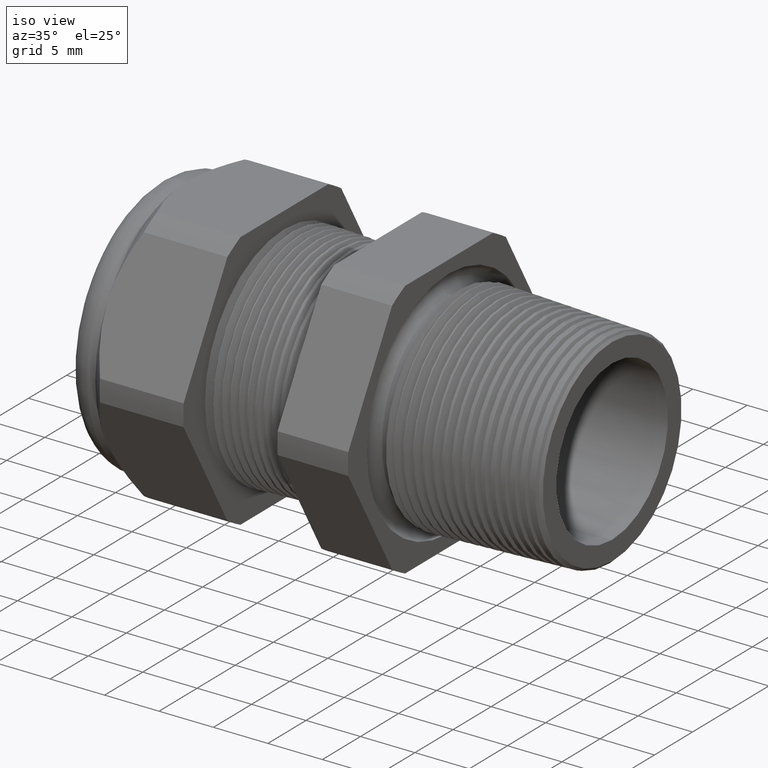
[diagram: clean part render]
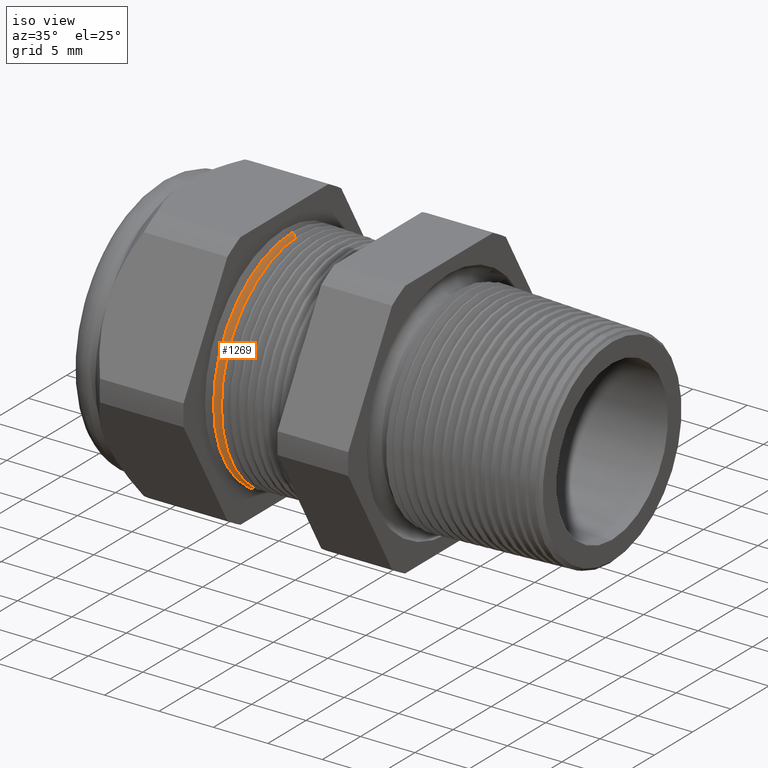
[diagram: same view with one face highlighted and labeled with its STEP entity id]
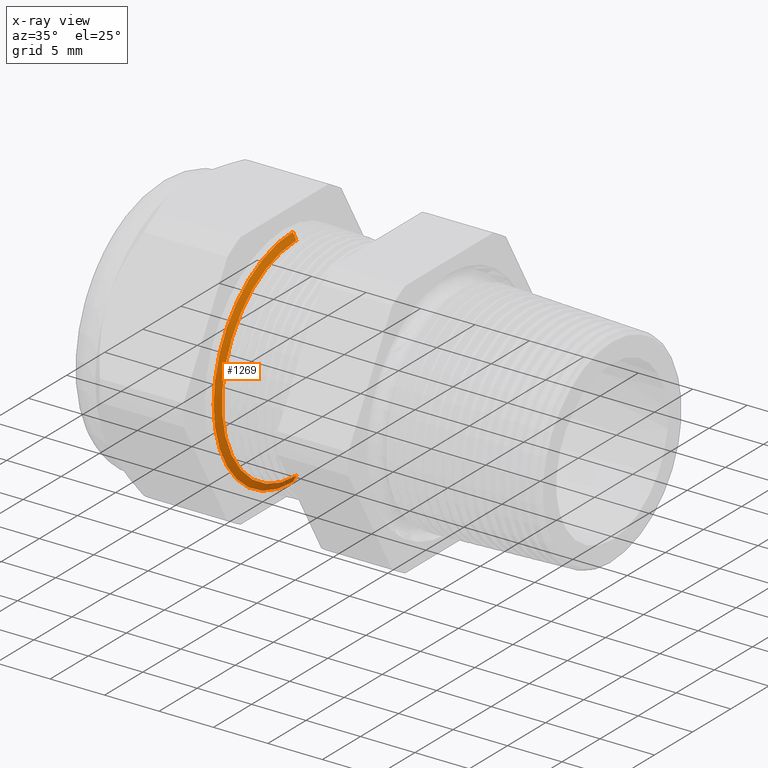
[diagram: x-ray of the same camera — body ghosted, the highlighted face saturated]
A machine part, iso view. The second image highlights one B-rep face of the part: STEP entity #1269.
The next image is the same camera in x-ray: the body ghosted, the highlighted face saturated — about 5% of this face is hidden behind the body in this view.
In plain terms, the highlighted conical surface has half-angle 62 deg.
Its self-contained STEP definition (entity closure, byte-faithful):
#639 = EDGE_CURVE ( 'NONE', #1673, #1871, #3280, .T. ) ;
#1269 = ADVANCED_FACE ( 'NONE', ( #4409 ), #4469, .T. ) ;
#1270 = EDGE_LOOP ( 'NONE', ( #1271, #1272, #1275, #1278 ) ) ;
#1271 = ORIENTED_EDGE ( 'NONE', *, *, #1870, .F. ) ;
#1272 = ORIENTED_EDGE ( 'NONE', *, *, #1274, .F. ) ;
#1274 = EDGE_CURVE ( 'NONE', #1857, #1887, #4459, .T. ) ;
#1275 = ORIENTED_EDGE ( 'NONE', *, *, #1672, .T. ) ;
#1278 = ORIENTED_EDGE ( 'NONE', *, *, #639, .T. ) ;
#1672 = EDGE_CURVE ( 'NONE', #1857, #1673, #5075, .T. ) ;
#1673 = VERTEX_POINT ( 'NONE', #5071 ) ;
#1857 = VERTEX_POINT ( 'NONE', #5418 ) ;
#1870 = EDGE_CURVE ( 'NONE', #1887, #1871, #5401, .T. ) ;
#1871 = VERTEX_POINT ( 'NONE', #5392 ) ;
#1887 = VERTEX_POINT ( 'NONE', #5423 ) ;
#3276 = DIRECTION ( 'NONE',  ( 0.0000000000000000000, 0.0000000000000000000, 1.000000000000000000 ) ) ;
#3277 = DIRECTION ( 'NONE',  ( 1.000000000000000000, 0.0000000000000000000, 0.0000000000000000000 ) ) ;
#3278 = CARTESIAN_POINT ( 'NONE',  ( -0.8748655013288362300, 0.0000000000000000000, 0.0000000000000000000 ) ) ;
#3279 = AXIS2_PLACEMENT_3D ( 'NONE', #3278, #3277, #3276 ) ;
#3280 = CIRCLE ( 'NONE', #3279, 0.4089325569502650900 ) ;
#4409 = FACE_OUTER_BOUND ( 'NONE', #1270, .T. ) ;
#4455 = DIRECTION ( 'NONE',  ( 0.0000000000000000000, 0.0000000000000000000, -1.000000000000000000 ) ) ;
#4456 = DIRECTION ( 'NONE',  ( 1.000000000000000000, 0.0000000000000000000, 0.0000000000000000000 ) ) ;
#4457 = CARTESIAN_POINT ( 'NONE',  ( -0.8618805942085761000, 0.0000000000000000000, 0.0000000000000000000 ) ) ;
#4458 = AXIS2_PLACEMENT_3D ( 'NONE', #4457, #4456, #4455 ) ;
#4459 = CIRCLE ( 'NONE', #4458, 0.3845114984791284700 ) ;
#4464 = DIRECTION ( 'NONE',  ( 0.0000000000000000000, 0.0000000000000000000, 1.000000000000000000 ) ) ;
#4465 = DIRECTION ( 'NONE',  ( -1.000000000000000000, 0.0000000000000000000, 0.0000000000000000000 ) ) ;
#4466 = CARTESIAN_POINT ( 'NONE',  ( -0.8754330708661417500, 0.0000000000000000000, 0.0000000000000000000 ) ) ;
#4467 = AXIS2_PLACEMENT_3D ( 'NONE', #4466, #4465, #4464 ) ;
#4469 = CONICAL_SURFACE ( 'NONE', #4467, 0.4099999999999999800, 1.082104136236474300 ) ;
#5071 = CARTESIAN_POINT ( 'NONE',  ( -0.8748655013288362300, 0.0000000000000000000, 0.4089325569502650900 ) ) ;
#5072 = DIRECTION ( 'NONE',  ( -0.4694715627858996300, 0.0000000000000000000, 0.8829475928589221000 ) ) ;
#5073 = VECTOR ( 'NONE', #5072, 39.37007874015748100 ) ;
#5074 = CARTESIAN_POINT ( 'NONE',  ( -0.8754330708661417500, 0.0000000000000000000, 0.4099999999999999800 ) ) ;
#5075 = LINE ( 'NONE', #5074, #5073 ) ;
#5392 = CARTESIAN_POINT ( 'NONE',  ( -0.8748655013288362300, 5.008346749259060200E-017, -0.4089325569502650900 ) ) ;
#5393 = DIRECTION ( 'NONE',  ( -0.4694715627858996300, 1.081298943409539500E-016, -0.8829475928589221000 ) ) ;
#5394 = VECTOR ( 'NONE', #5393, 39.37007874015748100 ) ;
#5395 = CARTESIAN_POINT ( 'NONE',  ( -0.8754330708661417500, 5.021051876504148100E-017, -0.4099999999999999800 ) ) ;
#5401 = LINE ( 'NONE', #5395, #5394 ) ;
#5418 = CARTESIAN_POINT ( 'NONE',  ( -0.8618805942085761000, 0.0000000000000000000, 0.3845114984791284700 ) ) ;
#5423 = CARTESIAN_POINT ( 'NONE',  ( -0.8618805942085761000, 4.858443613920509100E-017, -0.3845114984791284700 ) ) ;